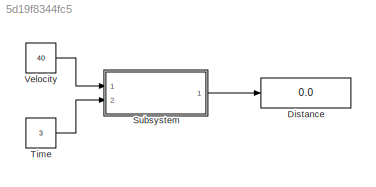
MODEL slx_5d19f8344fc5
KIND model
CONFIG AbsTol = auto
CONFIG EnableMultiTasking = off
CONFIG FixedStep = auto
CONFIG MaxStep = auto
CONFIG MinStep = auto
CONFIG RelTol = 1e-3
CONFIG SampleTimeConstraint = Unconstrained
CONFIG SolverName = VariableStepAuto
CONFIG StartTime = 0.0
CONFIG StopTime = 10.0
BLOCK [Display] Distance
  Decimation = 1
  Ports = [1]
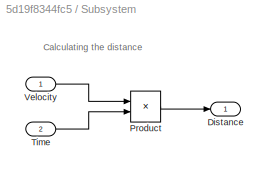
BLOCK [SubSystem] Subsystem
  Ports = [2, 1]
  RequestExecContextInheritance = off
BLOCK [Outport] Subsystem/Distance
BLOCK [Product] Subsystem/Product
  Ports = [2, 1]
BLOCK [Inport] Subsystem/Time
  Port = 2
BLOCK [Inport] Subsystem/Velocity
BLOCK [Constant] Time
  Value = 3
BLOCK [Constant] Velocity
  Value = 40
ANNOTATION Subsystem: Calculating the distance
LINE Subsystem/Product:1 -> Subsystem/Distance:1
LINE Subsystem/Time:1 -> Subsystem/Product:2
LINE Subsystem/Velocity:1 -> Subsystem/Product:1
LINE Subsystem:1 -> Distance:1
LINE Time:1 -> Subsystem:2
LINE Velocity:1 -> Subsystem:1
